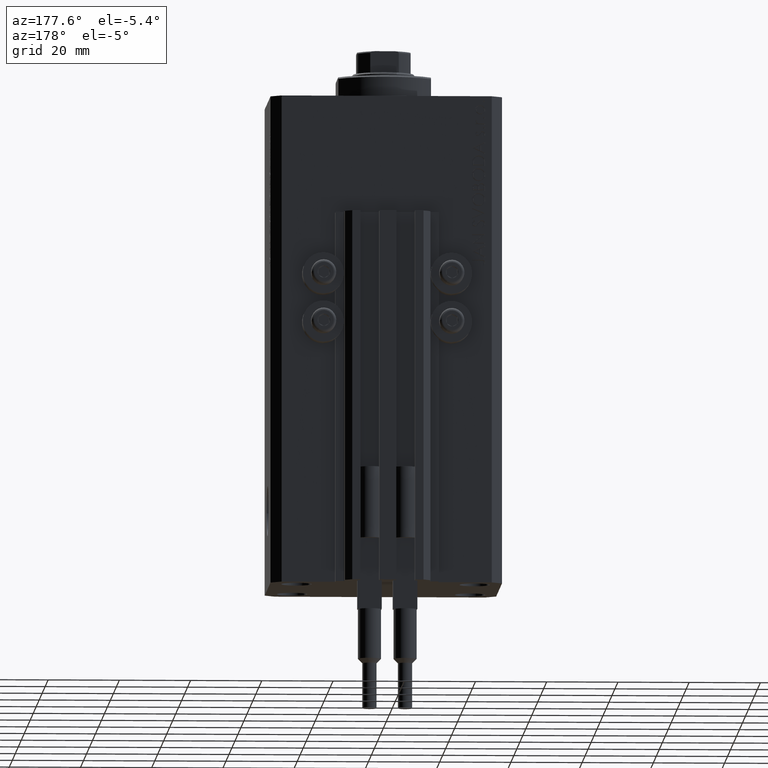
[diagram: clean part render]
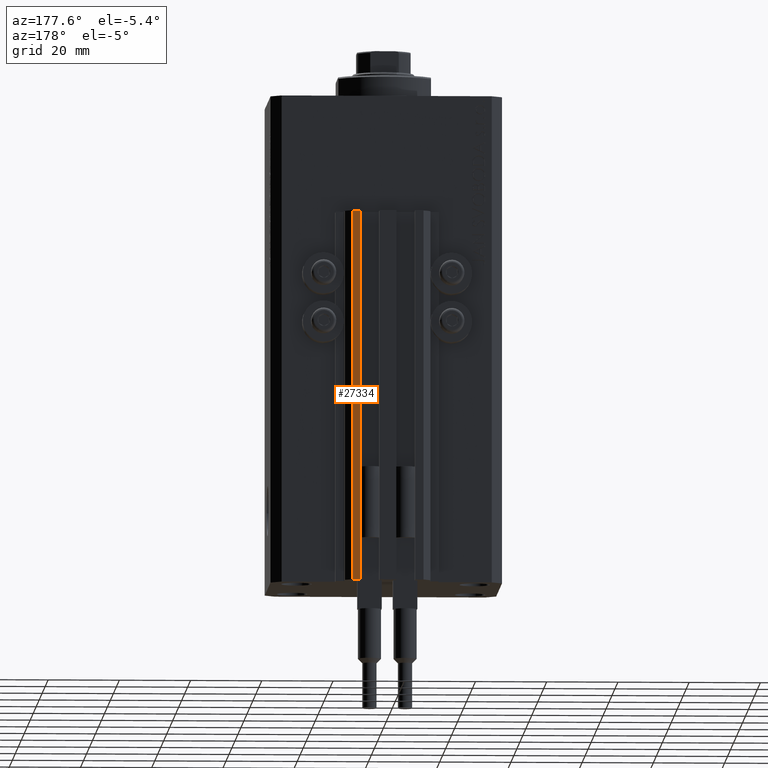
[diagram: same view with one face highlighted and labeled with its STEP entity id]
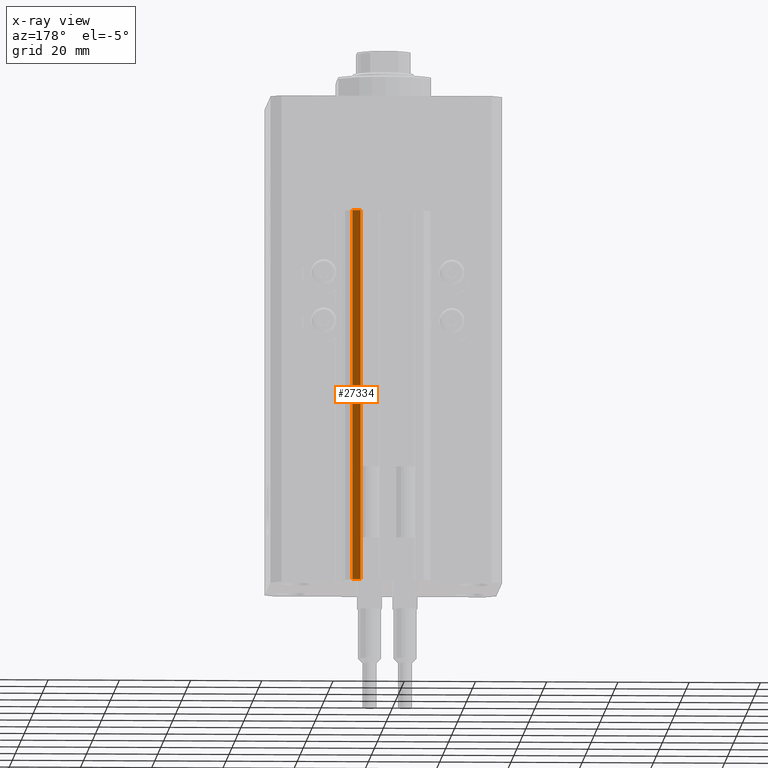
[diagram: x-ray of the same camera — body ghosted, the highlighted face saturated]
A machine part, auxiliary view. The second image highlights one B-rep face of the part: STEP entity #27334.
The next image is the same camera in x-ray: the body ghosted, the highlighted face saturated — about 0% of this face is hidden behind the body in this view.
In plain terms, the highlighted planar face has unit normal (-0, 1, 0).
Its self-contained STEP definition (entity closure, byte-faithful):
#1193 = CARTESIAN_POINT ( 'NONE',  ( 9.999999999999994671, 30.49999999999949551, -137.0000000000000000 ) ) ;
#2219 = CARTESIAN_POINT ( 'NONE',  ( 9.999999999999994671, 30.49999999999949551, -33.00000000000000000 ) ) ;
#2451 = VERTEX_POINT ( 'NONE', #43497 ) ;
#2479 = LINE ( 'NONE', #24115, #34991 ) ;
#3619 = VECTOR ( 'NONE', #29688, 1000.000000000000000 ) ;
#6321 = ORIENTED_EDGE ( 'NONE', *, *, #13105, .F. ) ;
#8992 = FACE_OUTER_BOUND ( 'NONE', #46952, .T. ) ;
#9223 = DIRECTION ( 'NONE',  ( -1.476360405086645049E-15, 1.000000000000000000, 0.000000000000000000 ) ) ;
#9263 = VERTEX_POINT ( 'NONE', #29676 ) ;
#12796 = ORIENTED_EDGE ( 'NONE', *, *, #26001, .F. ) ;
#13105 = EDGE_CURVE ( 'NONE', #9263, #2451, #24237, .T. ) ;
#16712 = VECTOR ( 'NONE', #17037, 1000.000000000000000 ) ;
#17037 = DIRECTION ( 'NONE',  ( -1.000000000000000000, -1.476360405086644852E-15, 0.000000000000000000 ) ) ;
#17756 = VERTEX_POINT ( 'NONE', #19683 ) ;
#19683 = CARTESIAN_POINT ( 'NONE',  ( 7.649999999999995026, 30.49999999999949196, -137.0000000000000000 ) ) ;
#22180 = LINE ( 'NONE', #44746, #3619 ) ;
#23814 = PLANE ( 'NONE',  #46237 ) ;
#24045 = DIRECTION ( 'NONE',  ( -1.000000000000000000, -1.476360405086645049E-15, 0.000000000000000000 ) ) ;
#24115 = CARTESIAN_POINT ( 'NONE',  ( 7.649999999999995026, 30.49999999999949196, -137.0000000000000000 ) ) ;
#24237 = LINE ( 'NONE', #1193, #36530 ) ;
#24585 = DIRECTION ( 'NONE',  ( 0.000000000000000000, 0.000000000000000000, 1.000000000000000000 ) ) ;
#24633 = CARTESIAN_POINT ( 'NONE',  ( 7.649999999999995026, 30.49999999999949196, -33.00000000000000000 ) ) ;
#26001 = EDGE_CURVE ( 'NONE', #2451, #29555, #35476, .T. ) ;
#27334 = ADVANCED_FACE ( 'NONE', ( #8992 ), #23814, .T. ) ;
#28672 = EDGE_CURVE ( 'NONE', #9263, #17756, #22180, .T. ) ;
#29555 = VERTEX_POINT ( 'NONE', #24633 ) ;
#29676 = CARTESIAN_POINT ( 'NONE',  ( 9.999999999999994671, 30.49999999999949551, -137.0000000000000000 ) ) ;
#29688 = DIRECTION ( 'NONE',  ( -1.000000000000000000, -1.476360405086644852E-15, 0.000000000000000000 ) ) ;
#31531 = ORIENTED_EDGE ( 'NONE', *, *, #28672, .T. ) ;
#34110 = ORIENTED_EDGE ( 'NONE', *, *, #43031, .T. ) ;
#34991 = VECTOR ( 'NONE', #24585, 1000.000000000000000 ) ;
#35476 = LINE ( 'NONE', #2219, #16712 ) ;
#36530 = VECTOR ( 'NONE', #45859, 1000.000000000000000 ) ;
#42487 = CARTESIAN_POINT ( 'NONE',  ( 9.999999999999994671, 30.49999999999949551, -137.0000000000000000 ) ) ;
#43031 = EDGE_CURVE ( 'NONE', #17756, #29555, #2479, .T. ) ;
#43497 = CARTESIAN_POINT ( 'NONE',  ( 9.999999999999994671, 30.49999999999949551, -33.00000000000000000 ) ) ;
#44746 = CARTESIAN_POINT ( 'NONE',  ( 9.999999999999994671, 30.49999999999949551, -137.0000000000000000 ) ) ;
#45859 = DIRECTION ( 'NONE',  ( 0.000000000000000000, 0.000000000000000000, 1.000000000000000000 ) ) ;
#46237 = AXIS2_PLACEMENT_3D ( 'NONE', #42487, #9223, #24045 ) ;
#46952 = EDGE_LOOP ( 'NONE', ( #12796, #6321, #31531, #34110 ) ) ;